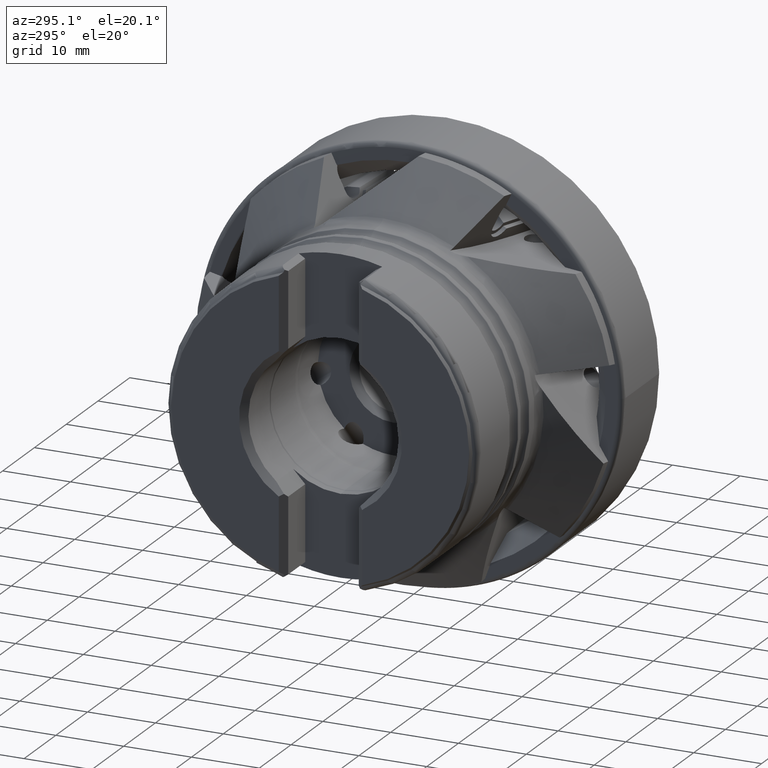
[diagram: clean part render]
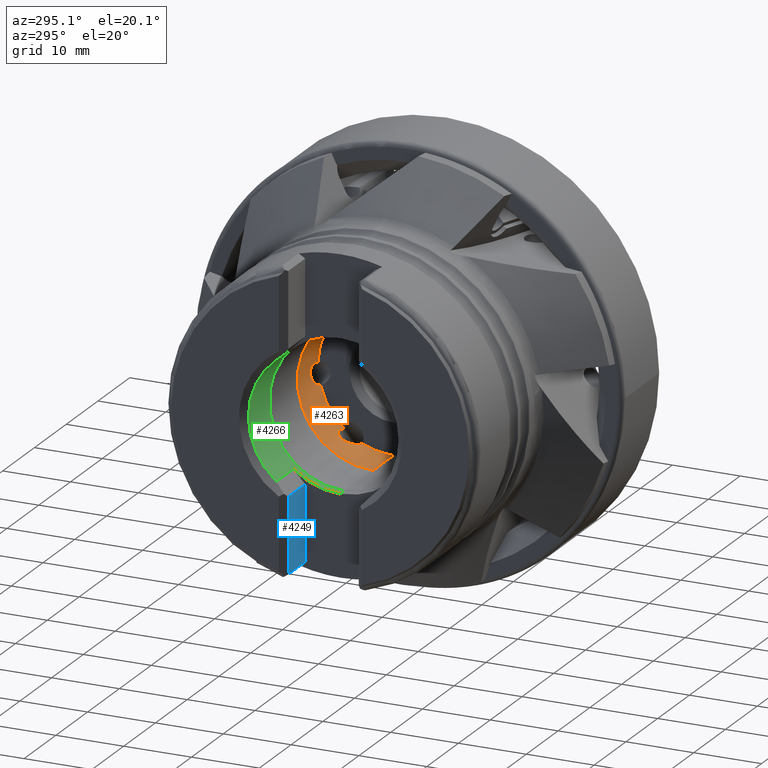
[diagram: same view with three faces highlighted in distinct colors, each labeled with its STEP entity id]
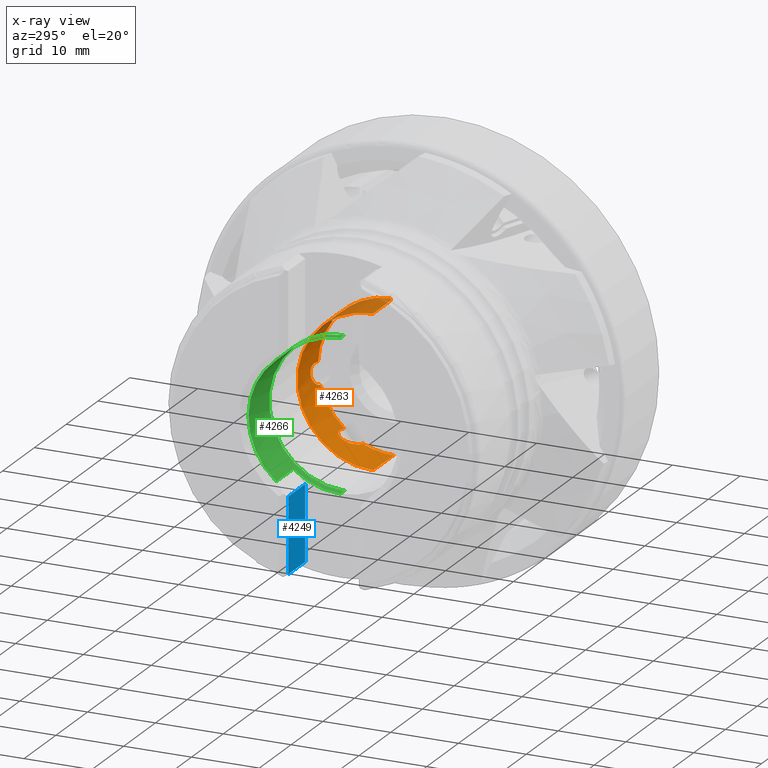
[diagram: x-ray of the same camera — body ghosted, the three highlighted faces saturated]
A machine part, auxiliary view with three faces highlighted in distinct colors.
The next image is the same camera in x-ray (body ghosted, the three faces saturated) — at least one of them is partly hidden behind the body in this view.
Their STEP definitions:

[orange] entity #4263 — the highlighted cylindrical surface (partial cylindrical patch) has radius 11.15 mm, axis along (1, -0, -0).
#13 = VERTEX_POINT ( 'NONE', #174 ) ;
#15 = VERTEX_POINT ( 'NONE', #175 ) ;
#64 = CARTESIAN_POINT ( 'NONE',  ( 0.0000000000000000000, 0.0000000000000000000, 0.0000000000000000000 ) ) ;
#67 = DIRECTION ( 'NONE',  ( 1.000000000000000000, -0.0000000000000000000, -0.0000000000000000000 ) ) ;
#73 = DIRECTION ( 'NONE',  ( 0.0000000000000000000, 0.0000000000000000000, -1.000000000000000000 ) ) ;
#174 = CARTESIAN_POINT ( 'NONE',  ( -16.40000000000000600, 0.3515303172428809200, 11.14445720688356200 ) ) ;
#175 = CARTESIAN_POINT ( 'NONE',  ( -16.40000000000000600, 6.641723959113154100, 8.956003732186715600 ) ) ;
#404 = CARTESIAN_POINT ( 'NONE',  ( 0.0000000000000000000, 1.365481181049298600E-015, 11.14999999999999900 ) ) ;
#415 = DIRECTION ( 'NONE',  ( 1.000000000000000000, -0.0000000000000000000, -0.0000000000000000000 ) ) ;
#431 = CARTESIAN_POINT ( 'NONE',  ( -16.83438516342311400, 4.642961440384622700, -10.13779331565332800 ) ) ;
#440 = CARTESIAN_POINT ( 'NONE',  ( -16.62185768825515100, 4.571437882047551000, -10.16994522821561700 ) ) ;
#441 = CARTESIAN_POINT ( 'NONE',  ( -16.40000000000000600, 4.518680891398648000, -10.19333228153132600 ) ) ;
#442 = CARTESIAN_POINT ( 'NONE',  ( -17.24252527185029400, 4.818961252820734000, -10.05532479294509000 ) ) ;
#443 = CARTESIAN_POINT ( 'NONE',  ( -17.43996944251832900, 4.924755183434051300, -10.00436967663616800 ) ) ;
#444 = CARTESIAN_POINT ( 'NONE',  ( -17.80693189558946400, 5.164885132896906800, -9.882539542422200900 ) ) ;
#445 = CARTESIAN_POINT ( 'NONE',  ( -17.97518944852901500, 5.297797961010585000, -9.812436733986562100 ) ) ;
#446 = CARTESIAN_POINT ( 'NONE',  ( -18.27810324032793300, 5.590265739246788700, -9.648808571983398300 ) ) ;
#447 = CARTESIAN_POINT ( 'NONE',  ( -18.41443534100620700, 5.752264854243160000, -9.553765645954060300 ) ) ;
#448 = CARTESIAN_POINT ( 'NONE',  ( -18.52132034355965500, 5.922748188918971500, -9.446880643400602300 ) ) ;
#453 = CARTESIAN_POINT ( 'NONE',  ( 0.0000000000000000000, 0.0000000000000000000, -11.14999999999999900 ) ) ;
#466 = DIRECTION ( 'NONE',  ( 1.000000000000000000, -0.0000000000000000000, -0.0000000000000000000 ) ) ;
#574 = CARTESIAN_POINT ( 'NONE',  ( -16.40000000000000600, 11.14313283019260600, 0.3912681033303185300 ) ) ;
#587 = CARTESIAN_POINT ( 'NONE',  ( -16.40000000000000600, 7.253535401651658000, -8.468100387748485500 ) ) ;
#700 = CARTESIAN_POINT ( 'NONE',  ( -18.52132034355965500, 5.922748188918971500, -9.446880643400602300 ) ) ;
#707 = CARTESIAN_POINT ( 'NONE',  ( -22.84904181246356100, 0.0000000000000000000, -11.14999999999999900 ) ) ;
#709 = CARTESIAN_POINT ( 'NONE',  ( -16.40000000000000600, 0.0000000000000000000, -11.14999999999999900 ) ) ;
#710 = CARTESIAN_POINT ( 'NONE',  ( -16.40000000000000600, 8.932263067204372600, 6.673617946680558100 ) ) ;
#712 = CARTESIAN_POINT ( 'NONE',  ( -18.75189319633009400, 11.14388917426181900, -0.3690989999583232400 ) ) ;
#746 = CARTESIAN_POINT ( 'NONE',  ( -16.40000000000000600, 4.518680891398648000, -10.19333228153132600 ) ) ;
#747 = CARTESIAN_POINT ( 'NONE',  ( -16.40000000000000600, 10.78681954259982600, -2.822591744370142000 ) ) ;
#794 = CARTESIAN_POINT ( 'NONE',  ( -22.84904181246356100, 1.365481181049298600E-015, 11.14999999999999900 ) ) ;
#833 = CARTESIAN_POINT ( 'NONE',  ( -18.34852835796407400, 8.087313653036496000, 7.675796888754488700 ) ) ;
#920 = CARTESIAN_POINT ( 'NONE',  ( -17.26592959277788400, 5.297643869557527800E-016, 11.14999999999999900 ) ) ;
#1604 = CARTESIAN_POINT ( 'NONE',  ( -22.84904181246356100, 0.0000000000000000000, 0.0000000000000000000 ) ) ;
#1605 = DIRECTION ( 'NONE',  ( 1.000000000000000000, -0.0000000000000000000, -0.0000000000000000000 ) ) ;
#1606 = DIRECTION ( 'NONE',  ( 0.0000000000000000000, 0.0000000000000000000, -1.000000000000000000 ) ) ;
#1607 = CARTESIAN_POINT ( 'NONE',  ( -18.52132034355965500, 5.922748188918971500, -9.446880643400602300 ) ) ;
#1608 = CARTESIAN_POINT ( 'NONE',  ( -18.59624618371568200, 6.042256134636594400, -9.371954803244580700 ) ) ;
#1609 = CARTESIAN_POINT ( 'NONE',  ( -16.40000000000000600, 0.0000000000000000000, 0.0000000000000000000 ) ) ;
#1610 = DIRECTION ( 'NONE',  ( 1.000000000000000000, -0.0000000000000000000, -0.0000000000000000000 ) ) ;
#1611 = DIRECTION ( 'NONE',  ( 0.0000000000000000000, 0.0000000000000000000, -1.000000000000000000 ) ) ;
#1612 = CARTESIAN_POINT ( 'NONE',  ( -18.65796414022759800, 6.167722605877870000, -9.290089786852471200 ) ) ;
#1613 = CARTESIAN_POINT ( 'NONE',  ( -18.74018172987464600, 6.423818098161490300, -9.114885157398875400 ) ) ;
#1614 = CARTESIAN_POINT ( 'NONE',  ( -18.76095810816460100, 6.555136071178597300, -9.020997525231608800 ) ) ;
#1615 = CARTESIAN_POINT ( 'NONE',  ( -18.73957405627506000, 6.811802592547117300, -8.828791010215947900 ) ) ;
#1616 = CARTESIAN_POINT ( 'NONE',  ( -18.69531452009211500, 6.937541906385480000, -8.729931300521967000 ) ) ;
#1617 = CARTESIAN_POINT ( 'NONE',  ( -18.57211962354596200, 7.096504030788415700, -8.600395490596682200 ) ) ;
#1618 = CARTESIAN_POINT ( 'NONE',  ( -18.52069688438910000, 7.145768825259203500, -8.559413008986679100 ) ) ;
#1619 = CARTESIAN_POINT ( 'NONE',  ( -18.40408727284175000, 7.230388234514155200, -8.488053318674188200 ) ) ;
#1620 = CARTESIAN_POINT ( 'NONE',  ( -18.33851609706318100, 7.266425528253638100, -8.457134690711850300 ) ) ;
#1621 = CARTESIAN_POINT ( 'NONE',  ( -18.12676241197878800, 7.356228444643592800, -8.379419526924641200 ) ) ;
#1622 = CARTESIAN_POINT ( 'NONE',  ( -17.97049153021312800, 7.390337621132006000, -8.349009437924689100 ) ) ;
#1623 = CARTESIAN_POINT ( 'NONE',  ( -17.65293852457567400, 7.425353624731051200, -8.317882681101481900 ) ) ;
#1624 = CARTESIAN_POINT ( 'NONE',  ( -17.49321593638388000, 7.426390113313048300, -8.316934195947185400 ) ) ;
#1625 = CARTESIAN_POINT ( 'NONE',  ( -17.01221380549116400, 7.397656920173650600, -8.342531404239556600 ) ) ;
#1626 = CARTESIAN_POINT ( 'NONE',  ( -16.70169953391610200, 7.337906854396245600, -8.395830186481507700 ) ) ;
#1627 = CARTESIAN_POINT ( 'NONE',  ( -16.40000000000000600, 7.253535401651658000, -8.468100387748485500 ) ) ;
#1628 = CARTESIAN_POINT ( 'NONE',  ( -18.75189319633009400, 11.14388917426181900, -0.3690989999583232400 ) ) ;
#1629 = CARTESIAN_POINT ( 'NONE',  ( -18.74669835856209600, 11.14795066197516800, -0.2464739888764288500 ) ) ;
#1630 = CARTESIAN_POINT ( 'NONE',  ( -16.40000000000000600, 0.0000000000000000000, 0.0000000000000000000 ) ) ;
#1631 = DIRECTION ( 'NONE',  ( 1.000000000000000000, -0.0000000000000000000, -0.0000000000000000000 ) ) ;
#1632 = DIRECTION ( 'NONE',  ( 0.0000000000000000000, 0.0000000000000000000, -1.000000000000000000 ) ) ;
#1633 = CARTESIAN_POINT ( 'NONE',  ( -18.72374212553509300, 11.14986883518763200, -0.1263547975663090500 ) ) ;
#1634 = CARTESIAN_POINT ( 'NONE',  ( -18.63169218706350700, 11.15011790436493700, 0.1020357560704215800 ) ) ;
#1635 = CARTESIAN_POINT ( 'NONE',  ( -18.56465061575175900, 11.14846848518811100, 0.2041050513838857700 ) ) ;
#1636 = CARTESIAN_POINT ( 'NONE',  ( -18.39036222356320500, 11.14394976948342700, 0.3773486086673261700 ) ) ;
#1637 = CARTESIAN_POINT ( 'NONE',  ( -18.28630819062514900, 11.14123183209771300, 0.4448539622739654000 ) ) ;
#1638 = CARTESIAN_POINT ( 'NONE',  ( -18.06338924753310600, 11.13685127922461900, 0.5435856590558787400 ) ) ;
#1639 = CARTESIAN_POINT ( 'NONE',  ( -17.94529293838180100, 11.13516907258972900, 0.5752062913365206800 ) ) ;
#1640 = CARTESIAN_POINT ( 'NONE',  ( -17.58250704206767200, 11.13216844066916500, 0.6314554770935612000 ) ) ;
#1641 = CARTESIAN_POINT ( 'NONE',  ( -17.33862669809866500, 11.13291182567532900, 0.6183141346169790400 ) ) ;
#1642 = CARTESIAN_POINT ( 'NONE',  ( -16.85844294117664100, 11.13698596287293100, 0.5399831016800182800 ) ) ;
#1643 = CARTESIAN_POINT ( 'NONE',  ( -16.62645349549420400, 11.14020673558490800, 0.4746019110436482400 ) ) ;
#1644 = CARTESIAN_POINT ( 'NONE',  ( -16.40000000000000600, 11.14313283019260600, 0.3912681033303185300 ) ) ;
#1645 = CARTESIAN_POINT ( 'NONE',  ( -18.34852835796407400, 8.087313653036496000, 7.675796888754488700 ) ) ;
#1646 = CARTESIAN_POINT ( 'NONE',  ( -18.44848720809349300, 7.989860979974209500, 7.778474219173988400 ) ) ;
#1647 = CARTESIAN_POINT ( 'NONE',  ( -16.40000000000000600, 0.0000000000000000000, 0.0000000000000000000 ) ) ;
#1648 = DIRECTION ( 'NONE',  ( 1.000000000000000000, -0.0000000000000000000, -0.0000000000000000000 ) ) ;
#1649 = DIRECTION ( 'NONE',  ( 0.0000000000000000000, 0.0000000000000000000, -1.000000000000000000 ) ) ;
#1651 = CARTESIAN_POINT ( 'NONE',  ( -18.53652053899861200, 7.882629629439801300, 7.887467273291507700 ) ) ;
#1652 = CARTESIAN_POINT ( 'NONE',  ( -18.67307824522791600, 7.653564936333555800, 8.109928090155445800 ) ) ;
#1653 = CARTESIAN_POINT ( 'NONE',  ( -18.72324279121581700, 7.528961444953648800, 8.225996422884948700 ) ) ;
#1654 = CARTESIAN_POINT ( 'NONE',  ( -18.76350991856010400, 7.270799028739703300, 8.455043410449896200 ) ) ;
#1655 = CARTESIAN_POINT ( 'NONE',  ( -18.75367494502829400, 7.134326194548528100, 8.570392710215363900 ) ) ;
#1656 = CARTESIAN_POINT ( 'NONE',  ( -18.67038346291551000, 6.939946024578959300, 8.727346935943028700 ) ) ;
#1657 = CARTESIAN_POINT ( 'NONE',  ( -18.63148052819595800, 6.877947546810596600, 8.776185437017268500 ) ) ;
#1658 = CARTESIAN_POINT ( 'NONE',  ( -18.53272222752700300, 6.765042060804029600, 8.863509417671098200 ) ) ;
#1659 = CARTESIAN_POINT ( 'NONE',  ( -18.47144366482898900, 6.713031524162371300, 8.902846551523158100 ) ) ;
#1660 = CARTESIAN_POINT ( 'NONE',  ( -18.33527377586019800, 6.625699505799203400, 8.968030721580834800 ) ) ;
#1661 = CARTESIAN_POINT ( 'NONE',  ( -18.25876504841604100, 6.589084667228338100, 8.994872826902151200 ) ) ;
#1662 = CARTESIAN_POINT ( 'NONE',  ( -18.09948766035032000, 6.531363558519660600, 9.036872467313440200 ) ) ;
#1663 = CARTESIAN_POINT ( 'NONE',  ( -18.01665331110114500, 6.509881278583387500, 9.052310110659963300 ) ) ;
#1664 = CARTESIAN_POINT ( 'NONE',  ( -17.76072921513987200, 6.462808833895718600, 9.086038321498811900 ) ) ;
#1665 = CARTESIAN_POINT ( 'NONE',  ( -17.58567479782480400, 6.455273458532797500, 9.091315420941271000 ) ) ;
#1666 = CARTESIAN_POINT ( 'NONE',  ( -17.23868898305442700, 6.469055813036570500, 9.081513552007747200 ) ) ;
#1667 = CARTESIAN_POINT ( 'NONE',  ( -17.06473146144337600, 6.490821383774301600, 9.066047103924729500 ) ) ;
#1668 = CARTESIAN_POINT ( 'NONE',  ( -16.72739184760916600, 6.553065556366961500, 9.021158691687043400 ) ) ;
#1669 = CARTESIAN_POINT ( 'NONE',  ( -16.56227880084906800, 6.593727306959293900, 8.991597789994196800 ) ) ;
#1670 = CARTESIAN_POINT ( 'NONE',  ( -16.40000000000000600, 6.641723959113154100, 8.956003732186715600 ) ) ;
#1671 = CARTESIAN_POINT ( 'NONE',  ( -16.40000000000000600, 0.3515303172428809200, 11.14445720688356200 ) ) ;
#1672 = CARTESIAN_POINT ( 'NONE',  ( -16.55210982594280400, 0.3119840460666931700, 11.14570461741189600 ) ) ;
#1673 = CARTESIAN_POINT ( 'NONE',  ( -16.40000000000000600, 0.0000000000000000000, 0.0000000000000000000 ) ) ;
#1674 = DIRECTION ( 'NONE',  ( 1.000000000000000000, -0.0000000000000000000, -0.0000000000000000000 ) ) ;
#1675 = DIRECTION ( 'NONE',  ( 0.0000000000000000000, 0.0000000000000000000, -1.000000000000000000 ) ) ;
#1677 = CARTESIAN_POINT ( 'NONE',  ( -16.70059284225088400, 0.2623592138821819200, 11.14706747936466200 ) ) ;
#1678 = CARTESIAN_POINT ( 'NONE',  ( -16.98915607756649100, 0.1449778367188053200, 11.14921195302512300 ) ) ;
#1679 = CARTESIAN_POINT ( 'NONE',  ( -17.12952489826095700, 0.07713053991321834600, 11.15000000000000000 ) ) ;
#1680 = CARTESIAN_POINT ( 'NONE',  ( -17.26592959277788400, 5.297643869557527800E-016, 11.14999999999999900 ) ) ;
#3235 = B_SPLINE_CURVE_WITH_KNOTS ( 'NONE', 3,
 ( #1671, #1672, #1677, #1678, #1679, #1680 ),
 .UNSPECIFIED., .F., .F.,
 ( 4, 2, 4 ),
 ( 0.009500209461357732300, 0.009969739505830313400, 0.01043926955030289600 ),
 .UNSPECIFIED. ) ;
#3237 = B_SPLINE_CURVE_WITH_KNOTS ( 'NONE', 3,
 ( #1607, #1608, #1612, #1613, #1614, #1615, #1616, #1617, #1618, #1619, #1620, #1621, #1622, #1623, #1624, #1625, #1626, #1627 ),
 .UNSPECIFIED., .F., .F.,
 ( 4, 2, 2, 2, 2, 2, 2, 2, 4 ),
 ( 0.002711730847447634900, 0.003186958211362442900, 0.003662185575277250400, 0.004137412939192058400, 0.004375026621149464900, 0.004612640303106872400, 0.005087867667021694200, 0.005563095030936516000, 0.006513549758766150200 ),
 .UNSPECIFIED. ) ;
#3260 = B_SPLINE_CURVE_WITH_KNOTS ( 'NONE', 3,
 ( #1628, #1629, #1633, #1634, #1635, #1636, #1637, #1638, #1639, #1640, #1641, #1642, #1643, #1644 ),
 .UNSPECIFIED., .F., .F.,
 ( 4, 2, 2, 2, 2, 2, 4 ),
 ( 0.006288789605856425300, 0.006651817121169220500, 0.007014844636482015600, 0.007377872151794811700, 0.007740899667107606900, 0.008466954697733198100, 0.009193009728358788500 ),
 .UNSPECIFIED. ) ;
#3265 = B_SPLINE_CURVE_WITH_KNOTS ( 'NONE', 3,
 ( #1645, #1646, #1651, #1652, #1653, #1654, #1655, #1656, #1657, #1658, #1659, #1660, #1661, #1662, #1663, #1664, #1665, #1666, #1667, #1668, #1669, #1670 ),
 .UNSPECIFIED., .F., .F.,
 ( 4, 2, 2, 2, 2, 2, 2, 2, 2, 2, 4 ),
 ( 0.006244502553157000100, 0.006764459988224086300, 0.007284417423291170800, 0.007804374858358255300, 0.008064353575891799300, 0.008324332293425343300, 0.008584311010958885600, 0.008844289728492429500, 0.009364247163559505400, 0.009884204598626582900, 0.01040416203369366000 ),
 .UNSPECIFIED. ) ;
#3949 = B_SPLINE_CURVE_WITH_KNOTS ( 'NONE', 3,
 ( #441, #440, #431, #442, #443, #444, #445, #446, #447, #448 ),
 .UNSPECIFIED., .F., .F.,
 ( 4, 2, 2, 2, 4 ),
 ( 3.878959614448864200E-018, 0.0006779327118619116600, 0.001355865423723819400, 0.002033798135585727000, 0.002711730847447634900 ),
 .UNSPECIFIED. ) ;
#4263 = ADVANCED_FACE ( 'NONE', ( #8479 ), #8483, .F. ) ;
#4500 = EDGE_CURVE ( 'NONE', #6722, #6841, #8324, .T. ) ;
#4511 = EDGE_CURVE ( 'NONE', #6758, #6724, #8396, .T. ) ;
#4870 = EDGE_CURVE ( 'NONE', #6802, #6928, #10196, .T. ) ;
#4879 = EDGE_CURVE ( 'NONE', #6757, #6713, #3949, .T. ) ;
#4886 = EDGE_CURVE ( 'NONE', #6719, #6721, #10214, .T. ) ;
#4995 = VERTEX_POINT ( 'NONE', #574 ) ;
#5006 = VERTEX_POINT ( 'NONE', #587 ) ;
#5118 = ORIENTED_EDGE ( 'NONE', *, *, #4870, .F. ) ;
#5119 = ORIENTED_EDGE ( 'NONE', *, *, #7493, .F. ) ;
#5120 = ORIENTED_EDGE ( 'NONE', *, *, #4886, .T. ) ;
#5121 = ORIENTED_EDGE ( 'NONE', *, *, #7494, .T. ) ;
#5122 = ORIENTED_EDGE ( 'NONE', *, *, #4879, .T. ) ;
#5123 = ORIENTED_EDGE ( 'NONE', *, *, #7495, .T. ) ;
#5124 = ORIENTED_EDGE ( 'NONE', *, *, #7496, .T. ) ;
#5125 = ORIENTED_EDGE ( 'NONE', *, *, #4511, .T. ) ;
#5126 = ORIENTED_EDGE ( 'NONE', *, *, #7497, .T. ) ;
#5127 = ORIENTED_EDGE ( 'NONE', *, *, #7498, .T. ) ;
#5128 = ORIENTED_EDGE ( 'NONE', *, *, #4500, .T. ) ;
#5129 = ORIENTED_EDGE ( 'NONE', *, *, #7499, .T. ) ;
#5130 = ORIENTED_EDGE ( 'NONE', *, *, #7500, .T. ) ;
#5131 = ORIENTED_EDGE ( 'NONE', *, *, #7501, .T. ) ;
#6713 = VERTEX_POINT ( 'NONE', #700 ) ;
#6719 = VERTEX_POINT ( 'NONE', #707 ) ;
#6721 = VERTEX_POINT ( 'NONE', #709 ) ;
#6722 = VERTEX_POINT ( 'NONE', #710 ) ;
#6724 = VERTEX_POINT ( 'NONE', #712 ) ;
#6757 = VERTEX_POINT ( 'NONE', #746 ) ;
#6758 = VERTEX_POINT ( 'NONE', #747 ) ;
#6802 = VERTEX_POINT ( 'NONE', #794 ) ;
#6841 = VERTEX_POINT ( 'NONE', #833 ) ;
#6928 = VERTEX_POINT ( 'NONE', #920 ) ;
#7288 = EDGE_LOOP ( 'NONE', ( #5118, #5119, #5120, #5121, #5122, #5123, #5124, #5125, #5126, #5127, #5128, #5129, #5130, #5131 ) ) ;
#7493 = EDGE_CURVE ( 'NONE', #6719, #6802, #10370, .T. ) ;
#7494 = EDGE_CURVE ( 'NONE', #6721, #6757, #10371, .T. ) ;
#7495 = EDGE_CURVE ( 'NONE', #6713, #5006, #3237, .T. ) ;
#7496 = EDGE_CURVE ( 'NONE', #5006, #6758, #10372, .T. ) ;
#7497 = EDGE_CURVE ( 'NONE', #6724, #4995, #3260, .T. ) ;
#7498 = EDGE_CURVE ( 'NONE', #4995, #6722, #10373, .T. ) ;
#7499 = EDGE_CURVE ( 'NONE', #6841, #15, #3265, .T. ) ;
#7500 = EDGE_CURVE ( 'NONE', #15, #13, #10374, .T. ) ;
#7501 = EDGE_CURVE ( 'NONE', #13, #6928, #3235, .T. ) ;
#8023 = AXIS2_PLACEMENT_3D ( 'NONE', #64, #67, #73 ) ;
#8324 = B_SPLINE_CURVE_WITH_KNOTS ( 'NONE', 3,
 ( #9680, #9679, #9677, #9681, #9682, #9683, #9684, #9685, #9686, #9687 ),
 .UNSPECIFIED., .F., .F.,
 ( 4, 2, 2, 2, 4 ),
 ( 0.003841709489413093000, 0.004442407755349069500, 0.005043106021285047000, 0.005643804287221023500, 0.006244502553157000100 ),
 .UNSPECIFIED. ) ;
#8396 = B_SPLINE_CURVE_WITH_KNOTS ( 'NONE', 3,
 ( #9722, #9719, #9717, #9723, #9724, #9725, #9726, #9727, #9728, #9729, #9730, #9731, #9732, #9733, #9734, #9735 ),
 .UNSPECIFIED., .F., .F.,
 ( 4, 2, 2, 2, 2, 2, 2, 4 ),
 ( 0.002630134076641458900, 0.003087466017793330300, 0.003544797958945201200, 0.004459461841248943400, 0.004916793782400813400, 0.005374125723552684300, 0.005831457664704555200, 0.006288789605856425300 ),
 .UNSPECIFIED. ) ;
#8479 = FACE_OUTER_BOUND ( 'NONE', #7288, .T. ) ;
#8483 = CYLINDRICAL_SURFACE ( 'NONE', #8023, 11.14999999999999900 ) ;
#9677 = CARTESIAN_POINT ( 'NONE',  ( -16.78445068771271300, 8.861317579430060900, 6.768031821949129800 ) ) ;
#9679 = CARTESIAN_POINT ( 'NONE',  ( -16.59336929292531300, 8.902158097162770300, 6.713911759450520700 ) ) ;
#9680 = CARTESIAN_POINT ( 'NONE',  ( -16.40000000000000600, 8.932263067204372600, 6.673617946680558100 ) ) ;
#9681 = CARTESIAN_POINT ( 'NONE',  ( -17.14847951530332900, 8.760967839076842600, 6.897437677072078400 ) ) ;
#9682 = CARTESIAN_POINT ( 'NONE',  ( -17.32308672195870600, 8.701281151677866500, 6.972987916499040900 ) ) ;
#9683 = CARTESIAN_POINT ( 'NONE',  ( -17.65702972691650500, 8.560544709560817400, 7.145063221539494700 ) ) ;
#9684 = CARTESIAN_POINT ( 'NONE',  ( -17.81492299912738600, 8.479825434487818100, 7.241115169749024400 ) ) ;
#9685 = CARTESIAN_POINT ( 'NONE',  ( -18.10214973586291300, 8.299742964710539200, 7.446841949490658600 ) ) ;
#9686 = CARTESIAN_POINT ( 'NONE',  ( -18.23304754378746800, 8.199899122097008300, 7.557175459049619600 ) ) ;
#9687 = CARTESIAN_POINT ( 'NONE',  ( -18.34852835796407400, 8.087313653036496000, 7.675796888754488700 ) ) ;
#9717 = CARTESIAN_POINT ( 'NONE',  ( -16.69331204007491800, 10.80859747007538200, -2.738608063625582700 ) ) ;
#9719 = CARTESIAN_POINT ( 'NONE',  ( -16.54709145980017500, 10.79650510569995900, -2.785577386364602900 ) ) ;
#9722 = CARTESIAN_POINT ( 'NONE',  ( -16.40000000000000600, 10.78681954259982600, -2.822591744370142000 ) ) ;
#9723 = CARTESIAN_POINT ( 'NONE',  ( -16.97614625801756500, 10.83605010678214200, -2.627883460045700800 ) ) ;
#9724 = CARTESIAN_POINT ( 'NONE',  ( -17.11309128570902900, 10.85140250629852700, -2.564179588990974400 ) ) ;
#9725 = CARTESIAN_POINT ( 'NONE',  ( -17.51078070595174200, 10.90092014526577600, -2.348244718878029800 ) ) ;
#9726 = CARTESIAN_POINT ( 'NONE',  ( -17.76102121021500900, 10.93905348462874900, -2.168795398975278000 ) ) ;
#9727 = CARTESIAN_POINT ( 'NONE',  ( -18.08642681924694200, 10.99446434020116000, -1.858835664493036600 ) ) ;
#9728 = CARTESIAN_POINT ( 'NONE',  ( -18.18731932535918400, 11.01272731375714800, -1.748351839754700000 ) ) ;
#9729 = CARTESIAN_POINT ( 'NONE',  ( -18.37189933773046500, 11.04780143721997000, -1.510953489193751900 ) ) ;
#9730 = CARTESIAN_POINT ( 'NONE',  ( -18.45641508725006500, 11.06478121672615700, -1.382579327707527600 ) ) ;
#9731 = CARTESIAN_POINT ( 'NONE',  ( -18.59864182545716500, 11.09514795371194000, -1.112924461345873100 ) ) ;
#9732 = CARTESIAN_POINT ( 'NONE',  ( -18.65664382936060800, 11.10853247777330400, -0.9722257481027766200 ) ) ;
#9733 = CARTESIAN_POINT ( 'NONE',  ( -18.73712788737660500, 11.13055164746569200, -0.6749346176609291000 ) ) ;
#9734 = CARTESIAN_POINT ( 'NONE',  ( -18.75843750809769600, 11.13877262529084100, -0.5235785696502613900 ) ) ;
#9735 = CARTESIAN_POINT ( 'NONE',  ( -18.75189319633009400, 11.14388917426181900, -0.3690989999583232400 ) ) ;
#10196 = LINE ( 'NONE', #404, #10198 ) ;
#10198 = VECTOR ( 'NONE', #415, 1000.000000000000000 ) ;
#10214 = LINE ( 'NONE', #453, #10216 ) ;
#10216 = VECTOR ( 'NONE', #466, 1000.000000000000000 ) ;
#10370 = CIRCLE ( 'NONE', #10565, 11.14999999999999900 ) ;
#10371 = CIRCLE ( 'NONE', #10566, 11.14999999999999900 ) ;
#10372 = CIRCLE ( 'NONE', #10567, 11.14999999999999900 ) ;
#10373 = CIRCLE ( 'NONE', #10568, 11.14999999999999900 ) ;
#10374 = CIRCLE ( 'NONE', #10569, 11.14999999999999900 ) ;
#10565 = AXIS2_PLACEMENT_3D ( 'NONE', #1604, #1605, #1606 ) ;
#10566 = AXIS2_PLACEMENT_3D ( 'NONE', #1609, #1610, #1611 ) ;
#10567 = AXIS2_PLACEMENT_3D ( 'NONE', #1630, #1631, #1632 ) ;
#10568 = AXIS2_PLACEMENT_3D ( 'NONE', #1647, #1648, #1649 ) ;
#10569 = AXIS2_PLACEMENT_3D ( 'NONE', #1673, #1674, #1675 ) ;

[blue] entity #4249 — the highlighted planar face has unit normal (0, 1, -0).
#10 = VERTEX_POINT ( 'NONE', #137 ) ;
#137 = CARTESIAN_POINT ( 'NONE',  ( -38.45000000000000300, 5.200000000000000200, -10.50336502843507300 ) ) ;
#200 = DIRECTION ( 'NONE',  ( -1.000000000000000000, 1.621236893436268200E-016, 0.0000000000000000000 ) ) ;
#226 = CARTESIAN_POINT ( 'NONE',  ( -38.45000000000000300, 5.200000000000000200, 33.15000000000000600 ) ) ;
#255 = DIRECTION ( 'NONE',  ( 1.621236893436268200E-016, 1.000000000000000000, -0.0000000000000000000 ) ) ;
#349 = PLANE ( 'NONE',  #8008 ) ;
#576 = CARTESIAN_POINT ( 'NONE',  ( -33.10000000000000100, 5.199999999999999300, -10.50336502843507300 ) ) ;
#601 = CARTESIAN_POINT ( 'NONE',  ( -38.45000000000000300, 5.200000000000001100, -21.57126526361857100 ) ) ;
#618 = CARTESIAN_POINT ( 'NONE',  ( -33.10000000000000100, 5.199999999999999300, -21.57126526361855700 ) ) ;
#1752 = CARTESIAN_POINT ( 'NONE',  ( -38.45000000000000300, 5.200000000000000200, 33.15000000000000600 ) ) ;
#1763 = CARTESIAN_POINT ( 'NONE',  ( -33.10000000000000100, 5.199999999999999300, 33.15000000000000600 ) ) ;
#1764 = DIRECTION ( 'NONE',  ( -0.0000000000000000000, -0.0000000000000000000, -1.000000000000000000 ) ) ;
#1773 = CARTESIAN_POINT ( 'NONE',  ( -38.45000000000001000, 5.200000000000000200, -10.50336502843507300 ) ) ;
#1775 = DIRECTION ( 'NONE',  ( -1.000000000000000000, 1.621236893436268200E-016, 1.307621648656624900E-016 ) ) ;
#1776 = DIRECTION ( 'NONE',  ( -0.0000000000000000000, -0.0000000000000000000, -1.000000000000000000 ) ) ;
#1777 = CARTESIAN_POINT ( 'NONE',  ( -33.10000000000000100, 5.199999999999999300, -21.57126526361856000 ) ) ;
#1778 = DIRECTION ( 'NONE',  ( 1.000000000000000000, -1.621236893436268200E-016, -4.498135032755516700E-017 ) ) ;
#1831 = LINE ( 'NONE', #1773, #1832 ) ;
#1832 = VECTOR ( 'NONE', #1775, 1000.000000000000000 ) ;
#1833 = LINE ( 'NONE', #1777, #1837 ) ;
#1834 = LINE ( 'NONE', #1752, #1835 ) ;
#1835 = VECTOR ( 'NONE', #1776, 1000.000000000000000 ) ;
#1837 = VECTOR ( 'NONE', #1778, 1000.000000000000000 ) ;
#4249 = ADVANCED_FACE ( 'NONE', ( #8409 ), #349, .F. ) ;
#4993 = VERTEX_POINT ( 'NONE', #576 ) ;
#5020 = VERTEX_POINT ( 'NONE', #601 ) ;
#5037 = VERTEX_POINT ( 'NONE', #618 ) ;
#5218 = ORIENTED_EDGE ( 'NONE', *, *, #7526, .F. ) ;
#5219 = ORIENTED_EDGE ( 'NONE', *, *, #7531, .T. ) ;
#5220 = ORIENTED_EDGE ( 'NONE', *, *, #7532, .T. ) ;
#5221 = ORIENTED_EDGE ( 'NONE', *, *, #7533, .T. ) ;
#7526 = EDGE_CURVE ( 'NONE', #4993, #5037, #10388, .T. ) ;
#7531 = EDGE_CURVE ( 'NONE', #4993, #10, #1831, .T. ) ;
#7532 = EDGE_CURVE ( 'NONE', #10, #5020, #1834, .T. ) ;
#7533 = EDGE_CURVE ( 'NONE', #5020, #5037, #1833, .T. ) ;
#8008 = AXIS2_PLACEMENT_3D ( 'NONE', #226, #255, #200 ) ;
#8327 = EDGE_LOOP ( 'NONE', ( #5218, #5219, #5220, #5221 ) ) ;
#8409 = FACE_OUTER_BOUND ( 'NONE', #8327, .T. ) ;
#10388 = LINE ( 'NONE', #1763, #10391 ) ;
#10391 = VECTOR ( 'NONE', #1764, 1000.000000000000000 ) ;

[green] entity #4266 — the highlighted cylindrical surface (partial cylindrical patch) has radius 11.075 mm, axis along (1, -0, -0).
#12 = VERTEX_POINT ( 'NONE', #117 ) ;
#14 = VERTEX_POINT ( 'NONE', #124 ) ;
#47 = DIRECTION ( 'NONE',  ( 1.000000000000000000, -0.0000000000000000000, -0.0000000000000000000 ) ) ;
#55 = DIRECTION ( 'NONE',  ( 0.0000000000000000000, 0.0000000000000000000, -1.000000000000000000 ) ) ;
#60 = CARTESIAN_POINT ( 'NONE',  ( 0.0000000000000000000, 0.0000000000000000000, 0.0000000000000000000 ) ) ;
#117 = CARTESIAN_POINT ( 'NONE',  ( -33.10000000000000100, 6.952914283410220400, -8.620476087058650100 ) ) ;
#124 = CARTESIAN_POINT ( 'NONE',  ( -33.10000000000000100, 6.952914283410219600, 8.620476087058650100 ) ) ;
#597 = CARTESIAN_POINT ( 'NONE',  ( -38.45000000000000300, 6.952914283410229300, -8.620476087058643000 ) ) ;
#599 = CARTESIAN_POINT ( 'NONE',  ( -38.45000000000000300, 6.952914283410229300, 8.620476087058643000 ) ) ;
#765 = CARTESIAN_POINT ( 'NONE',  ( -33.10000000000000100, 1.356296330055693000E-015, 11.07499999999999400 ) ) ;
#872 = CARTESIAN_POINT ( 'NONE',  ( -33.10000000000000100, 0.0000000000000000000, -11.07499999999999400 ) ) ;
#895 = CARTESIAN_POINT ( 'NONE',  ( -31.85000000000000500, 1.356296330055693400E-015, 11.07499999999999600 ) ) ;
#916 = CARTESIAN_POINT ( 'NONE',  ( -31.85000000000000500, 0.0000000000000000000, -11.07499999999999600 ) ) ;
#1489 = CARTESIAN_POINT ( 'NONE',  ( -38.45000000000000300, 0.0000000000000000000, 0.0000000000000000000 ) ) ;
#1490 = DIRECTION ( 'NONE',  ( 1.000000000000000000, -0.0000000000000000000, -0.0000000000000000000 ) ) ;
#1491 = DIRECTION ( 'NONE',  ( 0.0000000000000000000, 0.0000000000000000000, -1.000000000000000000 ) ) ;
#1583 = DIRECTION ( 'NONE',  ( -1.000000000000000000, 0.0000000000000000000, 0.0000000000000000000 ) ) ;
#1586 = CARTESIAN_POINT ( 'NONE',  ( -1.668069982939288200E-030, 6.952914283410215100, 8.620476087058655400 ) ) ;
#1587 = CARTESIAN_POINT ( 'NONE',  ( -33.10000000000000100, 0.0000000000000000000, 0.0000000000000000000 ) ) ;
#1588 = DIRECTION ( 'NONE',  ( -1.000000000000000000, -0.0000000000000000000, 0.0000000000000000000 ) ) ;
#1589 = DIRECTION ( 'NONE',  ( 0.0000000000000000000, 0.0000000000000000000, -1.000000000000000000 ) ) ;
#1590 = CARTESIAN_POINT ( 'NONE',  ( -1.435971818863210300E-030, 6.952914283410216000, -8.620476087058653600 ) ) ;
#1591 = DIRECTION ( 'NONE',  ( 1.000000000000000000, -0.0000000000000000000, -0.0000000000000000000 ) ) ;
#1592 = CARTESIAN_POINT ( 'NONE',  ( -33.10000000000000100, 0.0000000000000000000, 0.0000000000000000000 ) ) ;
#1593 = DIRECTION ( 'NONE',  ( -1.000000000000000000, -0.0000000000000000000, 0.0000000000000000000 ) ) ;
#1594 = DIRECTION ( 'NONE',  ( 0.0000000000000000000, 0.0000000000000000000, -1.000000000000000000 ) ) ;
#1595 = CARTESIAN_POINT ( 'NONE',  ( -31.85000000000000500, 0.0000000000000000000, 0.0000000000000000000 ) ) ;
#1596 = DIRECTION ( 'NONE',  ( 1.000000000000000000, -0.0000000000000000000, -0.0000000000000000000 ) ) ;
#1597 = DIRECTION ( 'NONE',  ( 0.0000000000000000000, 0.0000000000000000000, -1.000000000000000000 ) ) ;
#3756 = CARTESIAN_POINT ( 'NONE',  ( 0.0000000000000000000, 0.0000000000000000000, -11.07499999999999400 ) ) ;
#3765 = DIRECTION ( 'NONE',  ( 1.000000000000000000, -0.0000000000000000000, -0.0000000000000000000 ) ) ;
#3795 = CARTESIAN_POINT ( 'NONE',  ( 0.0000000000000000000, 1.356296330055693000E-015, 11.07499999999999400 ) ) ;
#3796 = DIRECTION ( 'NONE',  ( 1.000000000000000000, -0.0000000000000000000, -0.0000000000000000000 ) ) ;
#3899 = LINE ( 'NONE', #3756, #3902 ) ;
#3902 = VECTOR ( 'NONE', #3765, 1000.000000000000000 ) ;
#3913 = LINE ( 'NONE', #3795, #3916 ) ;
#3916 = VECTOR ( 'NONE', #3796, 1000.000000000000000 ) ;
#4266 = ADVANCED_FACE ( 'NONE', ( #8484 ), #8492, .F. ) ;
#5016 = VERTEX_POINT ( 'NONE', #597 ) ;
#5018 = VERTEX_POINT ( 'NONE', #599 ) ;
#5102 = ORIENTED_EDGE ( 'NONE', *, *, #7971, .F. ) ;
#5103 = ORIENTED_EDGE ( 'NONE', *, *, #7486, .T. ) ;
#5104 = ORIENTED_EDGE ( 'NONE', *, *, #7487, .T. ) ;
#5105 = ORIENTED_EDGE ( 'NONE', *, *, #7459, .F. ) ;
#5106 = ORIENTED_EDGE ( 'NONE', *, *, #7488, .T. ) ;
#5107 = ORIENTED_EDGE ( 'NONE', *, *, #7489, .T. ) ;
#5108 = ORIENTED_EDGE ( 'NONE', *, *, #7961, .T. ) ;
#5109 = ORIENTED_EDGE ( 'NONE', *, *, #7490, .T. ) ;
#6774 = VERTEX_POINT ( 'NONE', #765 ) ;
#6880 = VERTEX_POINT ( 'NONE', #872 ) ;
#6903 = VERTEX_POINT ( 'NONE', #895 ) ;
#6924 = VERTEX_POINT ( 'NONE', #916 ) ;
#7190 = EDGE_LOOP ( 'NONE', ( #5102, #5103, #5104, #5105, #5106, #5107, #5108, #5109 ) ) ;
#7459 = EDGE_CURVE ( 'NONE', #5016, #5018, #10344, .T. ) ;
#7486 = EDGE_CURVE ( 'NONE', #6774, #14, #10362, .T. ) ;
#7487 = EDGE_CURVE ( 'NONE', #14, #5018, #10361, .T. ) ;
#7488 = EDGE_CURVE ( 'NONE', #5016, #12, #10363, .T. ) ;
#7489 = EDGE_CURVE ( 'NONE', #12, #6880, #10365, .T. ) ;
#7490 = EDGE_CURVE ( 'NONE', #6924, #6903, #10367, .T. ) ;
#7961 = EDGE_CURVE ( 'NONE', #6880, #6924, #3899, .T. ) ;
#7971 = EDGE_CURVE ( 'NONE', #6774, #6903, #3913, .T. ) ;
#8026 = AXIS2_PLACEMENT_3D ( 'NONE', #60, #47, #55 ) ;
#8484 = FACE_OUTER_BOUND ( 'NONE', #7190, .T. ) ;
#8492 = CYLINDRICAL_SURFACE ( 'NONE', #8026, 11.07499999999999400 ) ;
#10344 = CIRCLE ( 'NONE', #10548, 11.07499999999999400 ) ;
#10361 = LINE ( 'NONE', #1586, #10364 ) ;
#10362 = CIRCLE ( 'NONE', #10560, 11.07499999999999400 ) ;
#10363 = LINE ( 'NONE', #1590, #10366 ) ;
#10364 = VECTOR ( 'NONE', #1583, 1000.000000000000000 ) ;
#10365 = CIRCLE ( 'NONE', #10561, 11.07499999999999400 ) ;
#10366 = VECTOR ( 'NONE', #1591, 1000.000000000000000 ) ;
#10367 = CIRCLE ( 'NONE', #10562, 11.07499999999999600 ) ;
#10548 = AXIS2_PLACEMENT_3D ( 'NONE', #1489, #1490, #1491 ) ;
#10560 = AXIS2_PLACEMENT_3D ( 'NONE', #1587, #1588, #1589 ) ;
#10561 = AXIS2_PLACEMENT_3D ( 'NONE', #1592, #1593, #1594 ) ;
#10562 = AXIS2_PLACEMENT_3D ( 'NONE', #1595, #1596, #1597 ) ;